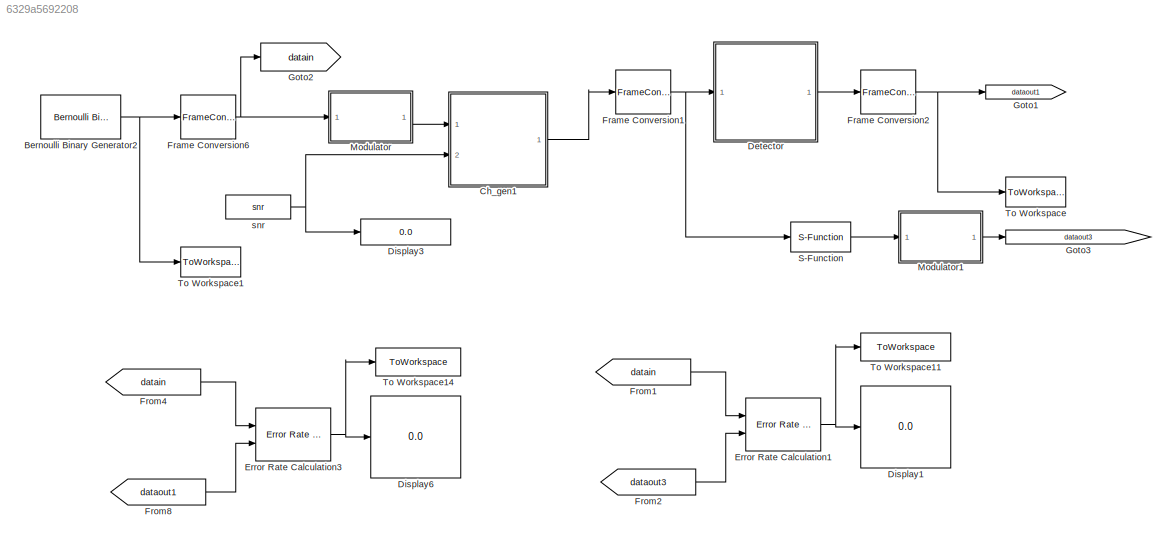
MODEL slx_6329a5692208
KIND model
CONFIG AbsTol = auto
CONFIG EnableMultiTasking = on
CONFIG FixedStep = auto
CONFIG MaxStep = auto
CONFIG MinStep = auto
CONFIG RelTol = 1e-3
CONFIG SampleTimeConstraint = Unconstrained
CONFIG Solver = ode45
CONFIG SolverName = ode45
CONFIG StartTime = 0.0
CONFIG StopTime = avg-1
BLOCK [Reference] Bernoulli Binary Generator2  REF=commrandsrc2/Bernoulli Binary
Generator
  Ports = [0, 1]
  SourceBlock = commrandsrc2/Bernoulli Binary\nGenerator
  SourceType = Bernoulli Binary Generator
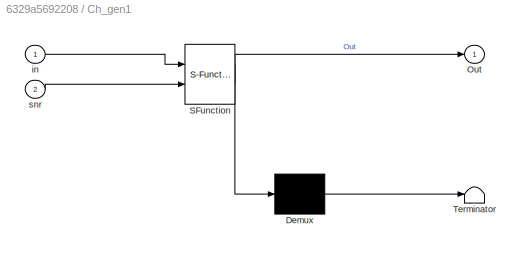
BLOCK [SubSystem] Ch_gen1
  ErrorFcn = Stateflow.Translate.translate
  PermitHierarchicalResolution = ExplicitOnly
  Ports = [2, 1]
  RequestExecContextInheritance = off
  SFBlockType = MATLAB Function
  TreatAsAtomicUnit = on
BLOCK [Demux] Ch_gen1/ Demux 
  Outputs = 1
  Ports = [1, 1]
BLOCK [S-Function] Ch_gen1/ SFunction 
  EnableBusSupport = on
  FunctionName = sf_sfun
  PortCounts = [2 2]
  Ports = [2, 2]
  SFcnIsStateOwnerBlock = off
  SFunctionDeploymentMode = off
  Tag = Stateflow S-Function Wired_BER 42
BLOCK [Terminator] Ch_gen1/ Terminator 
BLOCK [Outport] Ch_gen1/Out
  IconDisplay = Port number
BLOCK [Inport] Ch_gen1/in
  IconDisplay = Port number
BLOCK [Inport] Ch_gen1/snr
  IconDisplay = Port number
  Port = 2
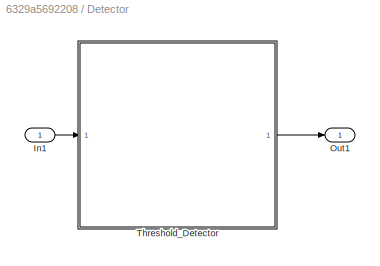
BLOCK [SubSystem] Detector
  Ports = [1, 1]
  RequestExecContextInheritance = off
BLOCK [Inport] Detector/In1
  IconDisplay = Port number
BLOCK [Outport] Detector/Out1
  IconDisplay = Port number
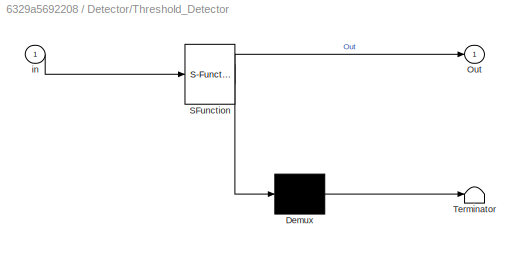
BLOCK [SubSystem] Detector/Threshold_Detector
  ErrorFcn = Stateflow.Translate.translate
  PermitHierarchicalResolution = ExplicitOnly
  Ports = [1, 1]
  RequestExecContextInheritance = off
  SFBlockType = MATLAB Function
  TreatAsAtomicUnit = on
BLOCK [Demux] Detector/Threshold_Detector/ Demux 
  Outputs = 1
  Ports = [1, 1]
BLOCK [S-Function] Detector/Threshold_Detector/ SFunction 
  EnableBusSupport = on
  FunctionName = sf_sfun
  PortCounts = [1 2]
  Ports = [1, 2]
  SFcnIsStateOwnerBlock = off
  SFunctionDeploymentMode = off
  Tag = Stateflow S-Function Wired_BER 11
BLOCK [Terminator] Detector/Threshold_Detector/ Terminator 
BLOCK [Outport] Detector/Threshold_Detector/Out
  IconDisplay = Port number
BLOCK [Inport] Detector/Threshold_Detector/in
  IconDisplay = Port number
BLOCK [Display] Display1
  Decimation = 1
  Ports = [1]
BLOCK [Display] Display3
  Decimation = 1
  Ports = [1]
BLOCK [Display] Display6
  Decimation = 1
  Ports = [1]
BLOCK [Reference] Error Rate Calculation1  REF=commsink2/Error Rate
Calculation
  Ports = [2, 1]
  SourceBlock = commsink2/Error Rate\nCalculation
  SourceProductBaseCode = CM
  SourceProductName = Communications System Toolbox
  SourceType = Error Rate Calculation
BLOCK [Reference] Error Rate Calculation3  REF=commsink2/Error Rate
Calculation
  Ports = [2, 1]
  SourceBlock = commsink2/Error Rate\nCalculation
  SourceProductBaseCode = CM
  SourceProductName = Communications System Toolbox
  SourceType = Error Rate Calculation
BLOCK [FrameConversion] Frame Conversion1
  Ports = [1, 1]
BLOCK [FrameConversion] Frame Conversion2
  Ports = [1, 1]
BLOCK [FrameConversion] Frame Conversion6
  Ports = [1, 1]
BLOCK [From] From1
  CloseFcn = tagdialog Close
  GotoTag = datain
  TagVisibility = global
BLOCK [From] From2
  CloseFcn = tagdialog Close
  GotoTag = dataout3
  TagVisibility = global
BLOCK [From] From4
  CloseFcn = tagdialog Close
  GotoTag = datain
  TagVisibility = global
BLOCK [From] From8
  CloseFcn = tagdialog Close
  GotoTag = dataout1
  TagVisibility = global
BLOCK [Goto] Goto1
  GotoTag = dataout1
  IconDisplay = Signal name
  TagVisibility = global
BLOCK [Goto] Goto2
  GotoTag = datain
  IconDisplay = Signal name
  TagVisibility = global
BLOCK [Goto] Goto3
  GotoTag = dataout3
  IconDisplay = Signal name
  TagVisibility = global
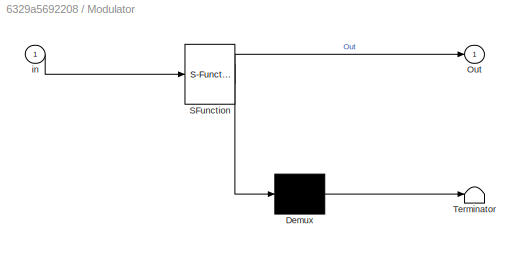
BLOCK [SubSystem] Modulator
  ErrorFcn = Stateflow.Translate.translate
  PermitHierarchicalResolution = ExplicitOnly
  Ports = [1, 1]
  RequestExecContextInheritance = off
  SFBlockType = MATLAB Function
  TreatAsAtomicUnit = on
BLOCK [Demux] Modulator/ Demux 
  Outputs = 1
  Ports = [1, 1]
BLOCK [S-Function] Modulator/ SFunction 
  EnableBusSupport = on
  FunctionName = sf_sfun
  PortCounts = [1 2]
  Ports = [1, 2]
  SFcnIsStateOwnerBlock = off
  SFunctionDeploymentMode = off
  Tag = Stateflow S-Function Wired_BER 1
BLOCK [Terminator] Modulator/ Terminator 
BLOCK [Outport] Modulator/Out
  IconDisplay = Port number
BLOCK [Inport] Modulator/in
  IconDisplay = Port number
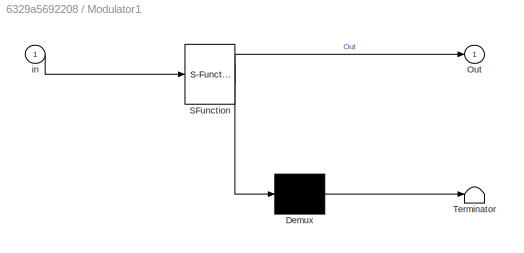
BLOCK [SubSystem] Modulator1
  ErrorFcn = Stateflow.Translate.translate
  PermitHierarchicalResolution = ExplicitOnly
  Ports = [1, 1]
  RequestExecContextInheritance = off
  SFBlockType = MATLAB Function
  TreatAsAtomicUnit = on
BLOCK [Demux] Modulator1/ Demux 
  Outputs = 1
  Ports = [1, 1]
BLOCK [S-Function] Modulator1/ SFunction 
  EnableBusSupport = on
  FunctionName = sf_sfun
  PortCounts = [1 2]
  Ports = [1, 2]
  SFcnIsStateOwnerBlock = off
  SFunctionDeploymentMode = off
  Tag = Stateflow S-Function Wired_BER 2
BLOCK [Terminator] Modulator1/ Terminator 
BLOCK [Outport] Modulator1/Out
  IconDisplay = Port number
BLOCK [Inport] Modulator1/in
  IconDisplay = Port number
BLOCK [S-Function] S-Function
  EnableBusSupport = off
  FunctionName = CppSwired
  Parameters = inlen1
  Ports = [1, 1]
  SFcnIsStateOwnerBlock = off
  SFunctionDeploymentMode = off
BLOCK [ToWorkspace] To Workspace
  FixptAsFi = on
  MaxDataPoints = inf
  Ports = [1]
  SampleTime = -1
  Save2DSignal = 2-D array (concatenate along first dimension)
  VariableName = out
BLOCK [ToWorkspace] To Workspace1
  FixptAsFi = on
  MaxDataPoints = inf
  Ports = [1]
  SampleTime = -1
  Save2DSignal = 2-D array (concatenate along first dimension)
  VariableName = in
BLOCK [ToWorkspace] To Workspace11
  MaxDataPoints = inf
  Ports = [1]
  SampleTime = -1
  VariableName = err
BLOCK [ToWorkspace] To Workspace14
  MaxDataPoints = inf
  Ports = [1]
  SampleTime = -1
  VariableName = err_mfile
BLOCK [Constant] snr
  Value = snr
NET Bernoulli Binary Generator2:1 -> Frame Conversion6:1, To Workspace1:1
LINE Ch_gen1:1 -> Frame Conversion1:1
LINE Detector/In1:1 -> Detector/Threshold_Detector:1
LINE Detector/Threshold_Detector:1 -> Detector/Out1:1
LINE Detector:1 -> Frame Conversion2:1
NET Error Rate Calculation1:1 -> Display1:1, To Workspace11:1
NET Error Rate Calculation3:1 -> Display6:1, To Workspace14:1
NET Frame Conversion1:1 -> Detector:1, S-Function:1
NET Frame Conversion2:1 -> Goto1:1, To Workspace:1
NET Frame Conversion6:1 -> Goto2:1, Modulator:1
LINE From1:1 -> Error Rate Calculation1:1
LINE From2:1 -> Error Rate Calculation1:2
LINE From4:1 -> Error Rate Calculation3:1
LINE From8:1 -> Error Rate Calculation3:2
LINE Modulator1:1 -> Goto3:1
LINE Modulator:1 -> Ch_gen1:1
LINE S-Function:1 -> Modulator1:1
NET snr:1 -> Ch_gen1:2, Display3:1
note: NET lines group one-source signal fan-out (src -> all destinations, sorted); 1:1 wires keep LINE
CHART Modulator states=1 transitions=1
  STATE_LABEL 'eML_blk_kernel()'
  STATE_LABEL 'SCRIPT:\nfunction Out = mod(in)\n[M,N] = size(in);\n%Out1 = zeros(M,1);\nOut = zeros(M,1);\n\nfor i =1:M\n    if(in(i) == 0)\n        Out(i) = -1;\n    else\n        Out(i) = 1;\n    end;\nend;'
CHART Modulator1 states=1 transitions=1
  STATE_LABEL 'eML_blk_kernel()'
  STATE_LABEL 'SCRIPT:\nfunction Out = mod(in)\nOut = real(in);'
CHART Detector/Threshold_Detector states=1 transitions=1
  STATE_LABEL 'eML_blk_kernel()'
  STATE_LABEL 'SCRIPT:\nfunction Out = Detector(in)\nOut1 = in > 0;\nOut = double(Out1);\n'
CHART Ch_gen1 states=1 transitions=1
  STATE_LABEL 'eML_blk_kernel()'
  STATE_LABEL 'SCRIPT:\nfunction Out = ch(in,snr)\n[M,N] = size(in);\nOut = zeros(M,1);\nn_var = 1/(10^(snr/10));\n\nOut =  in + ((n_var/2)^0.5)*(randn(M,1));\n\n\n'
